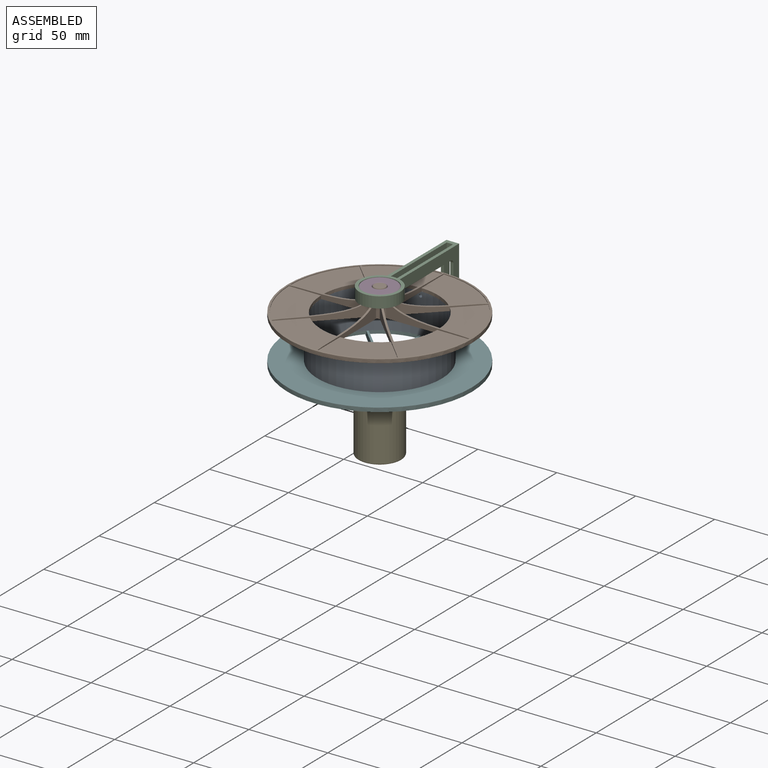
[diagram: assembled view]
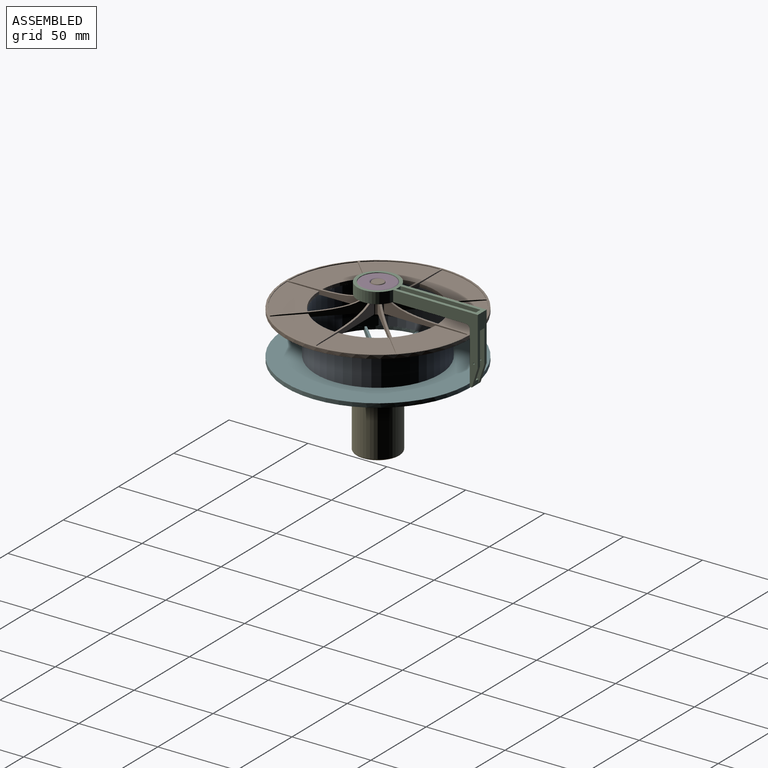
[diagram: assembled view, second angle]
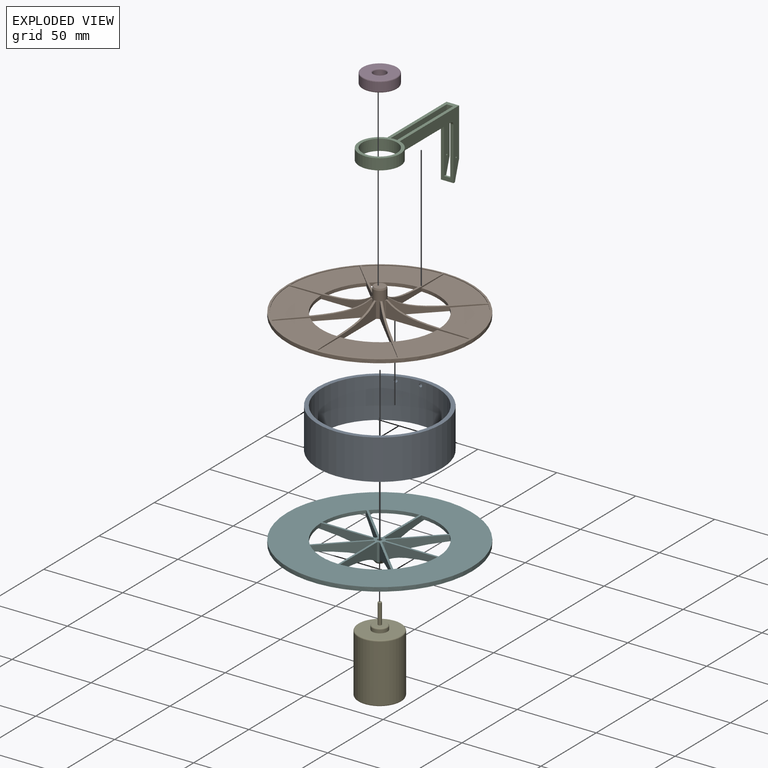
[diagram: exploded view]
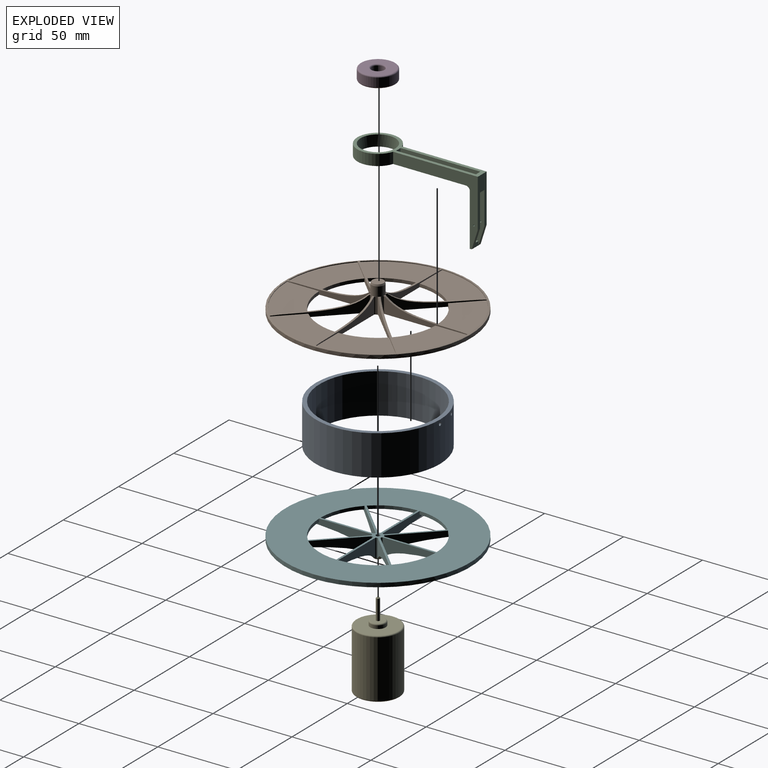
[diagram: exploded view, second angle]
ASSEMBLY  parts=6 mates=5
PART A: 6 faces, bbox 78.7x78.7x25.4 mm
  f0: cylinder r=36.83mm len=73.66mm, axis (0,0,-1), area 5871mm2, adj f2,f3,f4,f5
  f1: cylinder r=39.37mm len=78.74mm, axis (0,0,-1), area 6276.5mm2, adj f2,f3,f4,f5
  f2: plane 78.74x78.74mm, normal (0,0,1), area 608mm2, adj f0,f1
  f3: plane 78.74x78.74mm, normal (0,0,-1), area 608mm2, adj f0,f1
  f4: cylinder r=1mm len=2.55mm, axis (0,-1,0), area 16mm2, adj f0,f1
  f5: cylinder r=1mm len=3.51mm, axis (0,-1,0), area 17.1mm2, adj f0,f1
PART B: 71 faces, bbox 116.8x116.8x17.2 mm
  f0: plane 1.89x1.89mm, normal (0,0,1), area 1.1mm2, adj f11,f12,f39,f40,f41,f67
  f1: plane 2.35x0.91mm, normal (0,0,1), area 1.1mm2, adj f11,f14,f15,f37,f48,f67,f68
  f2: plane 1.89x1.89mm, normal (0,0,1), area 1.1mm2, adj f11,f16,f35,f36,f42,f67
  f3: plane 2.35x0.91mm, normal (0,0,1), area 1.1mm2, adj f11,f31,f32,f33,f47,f67
  f4: plane 1.89x1.89mm, normal (0,0,1), area 1.1mm2, adj f11,f27,f28,f29,f46,f67
  f5: plane 2.35x0.91mm, normal (0,0,1), area 1.1mm2, adj f11,f23,f24,f25,f45,f67
  f6: plane 1.89x1.89mm, normal (0,0,1), area 1.1mm2, adj f11,f18,f19,f21,f44,f67
  f7: plane 2.35x0.91mm, normal (0,0,1), area 1.1mm2, adj f9,f10,f11,f20,f43,f67
  f8: cylinder r=57.15mm len=39.32mm, axis (0,0,-1), area 19.4mm2, adj f9,f41,f55,f67
  f9: plane 52.59x10.16mm, normal (0,1,0), area 166.3mm2, adj f7,f8,f10,f50,f55,f56,f67
  f10: cylinder r=0.76mm len=10.16mm, axis (0,0,-1), area 9.9mm2, adj f7,f9,f11,f50
  f11: cylinder r=4mm len=16.11mm, axis (0,0,-1), area 211.4mm2, adj f0,f1,f2,f3,f4,f5,f6,f7
  f12: cylinder r=0.76mm len=10.16mm, axis (0,0,-1), area 9.9mm2, adj f0,f11,f41,f50
  f13: cylinder r=57.15mm len=39.32mm, axis (0,0,-1), area 19.4mm2, adj f14,f42,f53,f67
  f14: plane 52.59x10.16mm, normal (-1,0,0), area 166.3mm2, adj f1,f13,f15,f50,f53,f54,f67
  f15: cylinder r=0.76mm len=10.16mm, axis (0,0,-1), area 9.9mm2, adj f1,f11,f14,f50
  f16: cylinder r=0.76mm len=10.16mm, axis (0,0,-1), area 9.9mm2, adj f2,f11,f42,f50
  f17: cylinder r=57.15mm len=39.32mm, axis (0,0,-1), area 19.4mm2, adj f18,f43,f51,f67
  f18: plane 37.19x37.19mm, normal (0.71,0.71,0), area 166.3mm2, adj f6,f17,f19,f50,f51,f52,f67
  f19: cylinder r=0.76mm len=10.16mm, axis (0,0,-1), area 9.9mm2, adj f6,f11,f18,f50
  f20: cylinder r=0.76mm len=10.16mm, axis (0,0,-1), area 9.9mm2, adj f7,f11,f43,f50
  f21: plane 37.19x37.19mm, normal (-0.71,-0.71,0), area 166.3mm2, adj f6,f22,f44,f50,f65,f66,f67
  f22: cylinder r=57.15mm len=39.32mm, axis (0,0,-1), area 19.4mm2, adj f21,f23,f65,f67
  f23: plane 52.59x10.16mm, normal (1,0,0), area 166.3mm2, adj f5,f22,f24,f50,f65,f66,f67
  f24: cylinder r=0.76mm len=10.16mm, axis (0,0,-1), area 9.9mm2, adj f5,f11,f23,f50
  f25: plane 52.59x10.16mm, normal (-1,0,0), area 166.3mm2, adj f5,f26,f45,f50,f63,f64,f67
  f26: cylinder r=57.15mm len=39.32mm, axis (0,0,-1), area 19.4mm2, adj f25,f27,f63,f67
  f27: plane 37.19x37.19mm, normal (0.71,-0.71,0), area 166.3mm2, adj f4,f26,f28,f50,f63,f64,f67
  f28: cylinder r=0.76mm len=10.16mm, axis (0,0,-1), area 9.9mm2, adj f4,f11,f27,f50
  f29: plane 37.19x37.19mm, normal (-0.71,0.71,0), area 166.3mm2, adj f4,f30,f46,f50,f61,f62,f67
  f30: cylinder r=57.15mm len=39.32mm, axis (0,0,-1), area 19.4mm2, adj f29,f31,f61,f67
  f31: plane 52.59x10.16mm, normal (0,-1,0), area 166.3mm2, adj f3,f30,f32,f50,f61,f62,f67
  f32: cylinder r=0.76mm len=10.16mm, axis (0,0,-1), area 9.9mm2, adj f3,f11,f31,f50
  f33: plane 52.59x10.16mm, normal (0,1,0), area 166.3mm2, adj f3,f34,f47,f50,f59,f60,f67
  f34: cylinder r=57.15mm len=39.32mm, axis (0,0,-1), area 19.4mm2, adj f33,f35,f59,f67
  f35: plane 37.19x37.19mm, normal (-0.71,-0.71,0), area 166.3mm2, adj f2,f34,f36,f50,f59,f60,f67
  f36: cylinder r=0.76mm len=10.16mm, axis (0,0,-1), area 9.9mm2, adj f2,f11,f35,f50
  f37: plane 52.59x10.16mm, normal (1,0,0), area 166.3mm2, adj f1,f38,f48,f50,f57,f58,f68
  f38: cylinder r=57.15mm len=39.32mm, axis (0,0,-1), area 19.4mm2, adj f37,f39,f57,f67
  f39: plane 37.19x37.19mm, normal (-0.71,0.71,0), area 166.3mm2, adj f0,f38,f40,f50,f57,f58,f67
  f40: cylinder r=0.76mm len=10.16mm, axis (0,0,-1), area 9.9mm2, adj f0,f11,f39,f50
  f41: plane 37.19x37.19mm, normal (0.71,-0.71,0), area 166.3mm2, adj f0,f8,f12,f50,f55,f56,f67
  f42: plane 37.19x37.19mm, normal (0.71,0.71,0), area 166.3mm2, adj f2,f13,f16,f50,f53,f54,f67
  f43: plane 52.59x10.16mm, normal (0,-1,0), area 166.3mm2, adj f7,f17,f20,f50,f51,f52,f67
  f44: cylinder r=0.76mm len=10.16mm, axis (0,0,-1), area 9.9mm2, adj f6,f11,f21,f50
  f45: cylinder r=0.76mm len=10.16mm, axis (0,0,-1), area 9.9mm2, adj f5,f11,f25,f50
  f46: cylinder r=0.76mm len=10.16mm, axis (0,0,-1), area 9.9mm2, adj f4,f11,f29,f50
  f47: cylinder r=0.76mm len=10.16mm, axis (0,0,-1), area 9.9mm2, adj f3,f11,f33,f50
  f48: cylinder r=0.76mm len=10.16mm, axis (0,0,-1), area 9.9mm2, adj f1,f11,f37,f50
  f49: cylinder r=58.42mm len=116.84mm, axis (0,0,-1), area 838.3mm2, adj f50,f67
  f50: plane 116.84x116.84mm, normal (0,0,-1), area 6845.6mm2, adj f9,f10,f11,f12,f14,f15,f16,f18
  f51: plane 39.32x30.66mm, normal (0,0,1), area 724.1mm2, adj f17,f18,f43,f52
  f52: cylinder r=36.83mm len=24.96mm, axis (0,0,-1), area 55.3mm2, adj f18,f43,f50,f51
  f53: plane 39.32x30.66mm, normal (0,0,1), area 724.1mm2, adj f13,f14,f42,f54
  f54: cylinder r=36.83mm len=24.96mm, axis (0,0,-1), area 55.3mm2, adj f14,f42,f50,f53
  f55: plane 39.32x30.66mm, normal (0,0,1), area 724.1mm2, adj f8,f9,f41,f56
  f56: cylinder r=36.83mm len=24.96mm, axis (0,0,-1), area 55.3mm2, adj f9,f41,f50,f55
  f57: plane 39.32x30.66mm, normal (0,0,1), area 724.1mm2, adj f37,f38,f39,f58
  f58: cylinder r=36.83mm len=24.96mm, axis (0,0,-1), area 55.3mm2, adj f37,f39,f50,f57
  f59: plane 39.32x30.66mm, normal (0,0,1), area 724.1mm2, adj f33,f34,f35,f60
  f60: cylinder r=36.83mm len=24.96mm, axis (0,0,-1), area 55.3mm2, adj f33,f35,f50,f59
  f61: plane 39.32x30.66mm, normal (0,0,1), area 724.1mm2, adj f29,f30,f31,f62
  f62: cylinder r=36.83mm len=24.96mm, axis (0,0,-1), area 55.3mm2, adj f29,f31,f50,f61
  f63: plane 39.32x30.66mm, normal (0,0,1), area 724.1mm2, adj f25,f26,f27,f64
  f64: cylinder r=36.83mm len=24.96mm, axis (0,0,-1), area 55.3mm2, adj f25,f27,f50,f63
  f65: plane 39.32x30.66mm, normal (0,0,1), area 724.1mm2, adj f21,f22,f23,f66
  f66: cylinder r=36.83mm len=24.96mm, axis (0,0,-1), area 55.3mm2, adj f21,f23,f50,f65
  f67: revolved ~116.83x116.83mm, area 996.4mm2, adj f0,f1,f2,f3,f4,f5,f6,f7
  f68: revolved ~52.46x7.72mm, area 16mm2, adj f1,f37,f67
  f69: plane 7.24x7.24mm, normal (0,0,1), area 41.1mm2, adj f70
  f70: cone r=3.62mm half-angle=20deg, axis (0,0,-1), area 26.7mm2, adj f11,f69
PART C: 22 faces, bbox 26x79x42.6 mm
  f0: plane 53.19x42.56mm, normal (-1,0,0), area 502.5mm2, adj f3,f5,f7,f8,f10,f11,f12,f13
  f1: plane 53.19x42.56mm, normal (1,0,0), area 502.5mm2, adj f3,f5,f7,f11,f12,f15,f16,f17
  f2: plane 53.67x42.56mm, normal (1,0,0), area 533.9mm2, adj f3,f4,f7,f8,f9,f10,f11,f12
  f3: plane 79.04x26mm, normal (0,0,-1), area 374.6mm2, adj f0,f1,f2,f4,f5,f6,f11,f14
  f4: cylinder r=13mm len=26mm, axis (0,0,-1), area 514.8mm2, adj f2,f3,f7,f14
  f5: cylinder r=13mm len=7mm, axis (0,0,-1), area 28.1mm2, adj f0,f1,f3,f7
  f6: cylinder r=11mm len=22mm, axis (0,0,-1), area 483.8mm2, adj f3,f7
  f7: plane 71.42x26mm, normal (0,0,1), area 333.9mm2, adj f0,f1,f2,f4,f5,f6,f8,f14
  f8: cylinder r=2.54mm len=2.54mm, axis (-1,0,0), area 8mm2, adj f0,f2,f7,f12
  f9: plane 8x1.27mm, normal (0,0,1), area 10.2mm2, adj f2,f10,f12,f14,f16,f21
  f10: plane 12.08x3.81mm, normal (0,0.95,0.3), area 25.3mm2, adj f0,f2,f9,f11
  f11: plane 30.48x8mm, normal (0,1,0), area 161.1mm2, adj f0,f1,f2,f3,f10,f14,f16,f18
  f12: plane 33.02x8mm, normal (0,-1,0), area 142.2mm2, adj f0,f1,f2,f8,f9,f14,f15,f20
  f13: cylinder r=0.51mm len=2mm, axis (-1,0,0), area 6.4mm2, adj f0,f2
  f14: plane 53.67x42.56mm, normal (-1,0,0), area 533.9mm2, adj f3,f4,f7,f9,f11,f12,f15,f16
  f15: cylinder r=2.54mm len=2.54mm, axis (1,0,0), area 8mm2, adj f1,f7,f12,f14
  f16: plane 12.08x3.81mm, normal (0,0.95,0.3), area 25.3mm2, adj f1,f9,f11,f14
  f17: cylinder r=0.51mm len=2mm, axis (1,0,0), area 6.4mm2, adj f1,f14
  f18: plane 4x2.54mm, normal (0,0,1), area 10.2mm2, adj f0,f1,f11,f19
  f19: plane 9.79x4mm, normal (0,-1,0), area 39.2mm2, adj f0,f1,f3,f18
  f20: plane 4x1.27mm, normal (0,0,-1), area 5.1mm2, adj f0,f1,f12,f21
  f21: plane 4x2.54mm, normal (0,1,0), area 10.2mm2, adj f0,f1,f9,f20
PART D: 8 faces, bbox 23.8x23.8x7 mm
  f0: cylinder r=4mm len=8mm, axis (0,0,-1), area 137.6mm2, adj f4,f6
  f1: cylinder r=11mm len=22mm, axis (0,0,-1), area 378.5mm2, adj f5,f7
  f2: plane 20.48x20.48mm, normal (0,0,1), area 258.1mm2, adj f6,f7
  f3: plane 20.48x20.48mm, normal (0,0,-1), area 258.1mm2, adj f4,f5
  f4: torus R=4.76mm, axis (0,0,1), area 32.2mm2, adj f0,f3
  f5: torus R=10.24mm, axis (0,0,1), area 80.6mm2, adj f1,f3
  f6: torus R=4.76mm, axis (0,0,1), area 32.2mm2, adj f0,f2
  f7: torus R=10.24mm, axis (0,0,1), area 80.6mm2, adj f1,f2
PART E: 17 faces, bbox 29.6x29.6x57 mm
  f0: cylinder r=1.13mm len=12.6mm, axis (0,0,-1), area 89.5mm2, adj f3,f12
  f1: plane 1.24x1.24mm, normal (0,0,-1), area 1.2mm2, adj f12
  f2: cylinder r=4.88mm len=9.75mm, axis (0,0,-1), area 62.3mm2, adj f6,f16
  f3: plane 8.23x8.23mm, normal (0,0,-1), area 49.2mm2, adj f0,f16
  f4: cylinder r=13.65mm len=36.32mm, axis (0,0,-1), area 3115.7mm2, adj f14,f15
  f5: plane 25.78x25.78mm, normal (0,0,1), area 445mm2, adj f7,f15
  f6: plane 25.78x25.78mm, normal (0,0,-1), area 447.3mm2, adj f2,f14
  f7: cylinder r=4.95mm len=9.91mm, axis (0,0,-1), area 49mm2, adj f5,f13
  f8: plane 8.38x8.38mm, normal (0,0,1), area 51.2mm2, adj f9,f13
  f9: cylinder r=1.13mm len=2.26mm, axis (0,0,-1), area 3.2mm2, adj f8,f11
  f10: plane 1.24x1.24mm, normal (0,0,1), area 1.2mm2, adj f11
  f11: torus R=0.62mm, axis (0,0,1), area 4.7mm2, adj f9,f10
  f12: torus R=0.62mm, axis (0,0,1), area 4.7mm2, adj f0,f1
  f13: torus R=4.19mm, axis (0,0,1), area 35.2mm2, adj f7,f8
  f14: torus R=12.89mm, axis (0,0,1), area 100.6mm2, adj f4,f6
  f15: torus R=12.89mm, axis (0,0,1), area 100.6mm2, adj f4,f5
  f16: torus R=4.11mm, axis (0,0,1), area 34.6mm2, adj f2,f3
PART F: 69 faces, bbox 116.8x116.8x12.7 mm
  f0: plane 4.52x4.52mm, normal (0,0,1), area 10.7mm2, adj f46,f68
  f1: plane 37.81x37.81mm, normal (-0.71,0.71,0), area 214mm2, adj f2,f50,f51,f52,f53,f68
  f2: cylinder r=0.76mm len=11.71mm, axis (0,0,-1), area 10.5mm2, adj f1,f3,f51,f68
  f3: cylinder r=3.17mm len=11.71mm, axis (0,0,-1), area 2.2mm2, adj f2,f4,f51,f68
  f4: cylinder r=0.76mm len=11.71mm, axis (0,0,-1), area 10.5mm2, adj f3,f5,f51,f68
  f5: plane 53.47x11.18mm, normal (1,0,0), area 214mm2, adj f4,f50,f51,f52,f53,f68
  f6: plane 37.81x37.81mm, normal (-0.71,-0.71,0), area 214mm2, adj f7,f41,f51,f60,f61,f68
  f7: cylinder r=0.76mm len=11.71mm, axis (0,0,-1), area 10.5mm2, adj f6,f8,f51,f68
  f8: cylinder r=3.17mm len=11.71mm, axis (0,0,-1), area 2.2mm2, adj f7,f9,f51,f68
  f9: cylinder r=0.76mm len=11.71mm, axis (0,0,-1), area 10.5mm2, adj f8,f10,f51,f68
  f10: plane 53.47x11.18mm, normal (0,1,0), area 214mm2, adj f9,f41,f51,f60,f61,f68
  f11: plane 53.47x11.18mm, normal (0,-1,0), area 214mm2, adj f12,f42,f51,f58,f59,f68
  f12: cylinder r=0.76mm len=11.71mm, axis (0,0,-1), area 10.5mm2, adj f11,f13,f51,f68
  f13: cylinder r=3.17mm len=11.71mm, axis (0,0,-1), area 2.2mm2, adj f12,f14,f51,f68
  f14: cylinder r=0.76mm len=11.71mm, axis (0,0,-1), area 10.5mm2, adj f13,f15,f51,f68
  f15: plane 37.81x37.81mm, normal (-0.71,0.71,0), area 214mm2, adj f14,f42,f51,f58,f59,f68
  f16: plane 37.81x37.81mm, normal (0.71,-0.71,0), area 214mm2, adj f17,f43,f51,f56,f57,f68
  f17: cylinder r=0.76mm len=11.71mm, axis (0,0,-1), area 10.5mm2, adj f16,f18,f51,f68
  f18: cylinder r=3.17mm len=11.71mm, axis (0,0,-1), area 2.2mm2, adj f17,f19,f51,f68
  f19: cylinder r=0.76mm len=11.71mm, axis (0,0,-1), area 10.5mm2, adj f18,f20,f51,f68
  f20: plane 53.47x11.18mm, normal (-1,0,0), area 214mm2, adj f19,f43,f51,f56,f57,f68
  f21: plane 53.47x11.18mm, normal (1,0,0), area 214mm2, adj f22,f44,f51,f54,f55,f68
  f22: cylinder r=0.76mm len=11.71mm, axis (0,0,-1), area 10.5mm2, adj f21,f23,f51,f68
  f23: cylinder r=3.17mm len=11.71mm, axis (0,0,-1), area 2.2mm2, adj f22,f24,f51,f68
  f24: cylinder r=0.76mm len=11.71mm, axis (0,0,-1), area 10.5mm2, adj f23,f25,f51,f68
  f25: plane 37.81x37.81mm, normal (-0.71,-0.71,0), area 214mm2, adj f24,f44,f51,f54,f55,f68
  f26: plane 53.47x11.18mm, normal (0,-1,0), area 214mm2, adj f27,f47,f51,f66,f67,f68
  f27: cylinder r=57.15mm len=39.32mm, axis (0,0,-1), area 28.2mm2, adj f26,f28,f66,f68
  f28: plane 37.81x37.81mm, normal (0.71,0.71,0), area 214mm2, adj f27,f29,f51,f66,f67,f68
  f29: cylinder r=0.76mm len=11.71mm, axis (0,0,-1), area 10.5mm2, adj f28,f30,f51,f68
  f30: cylinder r=3.17mm len=11.71mm, axis (0,0,-1), area 2.2mm2, adj f29,f47,f51,f68
  f31: plane 37.81x37.81mm, normal (0.71,0.71,0), area 214mm2, adj f32,f48,f51,f64,f65,f68
  f32: cylinder r=57.15mm len=39.32mm, axis (0,0,-1), area 28.2mm2, adj f31,f33,f64,f68
  f33: plane 53.47x11.18mm, normal (-1,0,0), area 214mm2, adj f32,f34,f51,f64,f65,f68
  f34: cylinder r=0.76mm len=11.71mm, axis (0,0,-1), area 10.5mm2, adj f33,f35,f51,f68
  f35: cylinder r=3.17mm len=11.71mm, axis (0,0,-1), area 2.2mm2, adj f34,f48,f51,f68
  f36: plane 37.81x37.81mm, normal (0.71,-0.71,0), area 214mm2, adj f37,f49,f51,f62,f63,f68
  f37: cylinder r=57.15mm len=39.32mm, axis (0,0,-1), area 28.2mm2, adj f36,f38,f62,f68
  f38: plane 53.47x11.18mm, normal (0,1,0), area 214mm2, adj f37,f39,f51,f62,f63,f68
  f39: cylinder r=0.76mm len=11.71mm, axis (0,0,-1), area 10.5mm2, adj f38,f40,f51,f68
  f40: cylinder r=3.17mm len=11.71mm, axis (0,0,-1), area 2.2mm2, adj f39,f49,f51,f68
  f41: cylinder r=57.15mm len=39.32mm, axis (0,0,-1), area 28.2mm2, adj f6,f10,f60,f68
  f42: cylinder r=57.15mm len=39.32mm, axis (0,0,-1), area 28.2mm2, adj f11,f15,f58,f68
  f43: cylinder r=57.15mm len=39.32mm, axis (0,0,-1), area 28.2mm2, adj f16,f20,f56,f68
  f44: cylinder r=57.15mm len=39.32mm, axis (0,0,-1), area 28.2mm2, adj f21,f25,f54,f68
  f45: cylinder r=58.42mm len=116.84mm, axis (0,0,-1), area 937.4mm2, adj f51,f68
  f46: cylinder r=1.31mm len=12.7mm, axis (0,0,-1), area 104.4mm2, adj f0,f51
  f47: cylinder r=0.76mm len=11.71mm, axis (0,0,-1), area 10.5mm2, adj f26,f30,f51,f68
  f48: cylinder r=0.76mm len=11.71mm, axis (0,0,-1), area 10.5mm2, adj f31,f35,f51,f68
  f49: cylinder r=0.76mm len=11.71mm, axis (0,0,-1), area 10.5mm2, adj f36,f40,f51,f68
  f50: cylinder r=57.15mm len=39.32mm, axis (0,0,-1), area 28.2mm2, adj f1,f5,f52,f68
  f51: plane 116.84x116.84mm, normal (0,0,-1), area 6829.9mm2, adj f1,f2,f3,f4,f5,f6,f7,f8
  f52: plane 39.32x30.66mm, normal (0,0,1), area 724.1mm2, adj f1,f5,f50,f53
  f53: cylinder r=36.83mm len=24.96mm, axis (0,0,-1), area 55.3mm2, adj f1,f5,f51,f52
  f54: plane 39.32x30.66mm, normal (0,0,1), area 724.1mm2, adj f21,f25,f44,f55
  f55: cylinder r=36.83mm len=24.96mm, axis (0,0,-1), area 55.3mm2, adj f21,f25,f51,f54
  f56: plane 39.32x30.66mm, normal (0,0,1), area 724.1mm2, adj f16,f20,f43,f57
  f57: cylinder r=36.83mm len=24.96mm, axis (0,0,-1), area 55.3mm2, adj f16,f20,f51,f56
  f58: plane 39.32x30.66mm, normal (0,0,1), area 724.1mm2, adj f11,f15,f42,f59
  f59: cylinder r=36.83mm len=24.96mm, axis (0,0,-1), area 55.3mm2, adj f11,f15,f51,f58
  f60: plane 39.32x30.66mm, normal (0,0,1), area 724.1mm2, adj f6,f10,f41,f61
  f61: cylinder r=36.83mm len=24.96mm, axis (0,0,-1), area 55.3mm2, adj f6,f10,f51,f60
  f62: plane 39.32x30.66mm, normal (0,0,1), area 724.1mm2, adj f36,f37,f38,f63
  f63: cylinder r=36.83mm len=24.96mm, axis (0,0,-1), area 55.3mm2, adj f36,f38,f51,f62
  f64: plane 39.32x30.66mm, normal (0,0,1), area 724.1mm2, adj f31,f32,f33,f65
  f65: cylinder r=36.83mm len=24.96mm, axis (0,0,-1), area 55.3mm2, adj f31,f33,f51,f64
  f66: plane 39.32x30.66mm, normal (0,0,1), area 724.1mm2, adj f26,f27,f28,f67
  f67: cylinder r=36.83mm len=24.96mm, axis (0,0,-1), area 55.3mm2, adj f26,f28,f51,f66
  f68: revolved ~116.84x116.84mm, area 1051.6mm2, adj f0,f1,f2,f3,f4,f5,f6,f7
PLACE A t=(239.45,112.1,-73.2)mm
PLACE B t=(239.45,112.1,-47.8)mm
PLACE C rot(axis=(0,1,0),180deg) t=(239.45,112.1,-30.64)mm
PLACE D t=(239.45,112.1,-37.64)mm
PLACE E rot(axis=(0,-1,0),180deg) t=(239.45,112.1,-73.2)mm
PLACE F rot(axis=(0,-1,0),180deg) t=(239.45,112.1,-73.2)mm
MATE fastened A.f1 <-> B.f30  axis (0,0,1) through (239.45,112.1,-47.8)mm
MATE fastened D.f0 <-> B.f11  axis (0,0,1) through (239.45,112.1,-30.64)mm
MATE fastened F.f46 <-> A.f1  axis (0,0,-1) through (239.45,112.1,-73.2)mm
MATE fastened C.f6 <-> B.f11  axis (0,0,1) through (239.45,112.1,-30.64)mm
MATE fastened F.f46 <-> E.f0  axis (0,0,1) through (239.45,112.1,-73.2)mm
